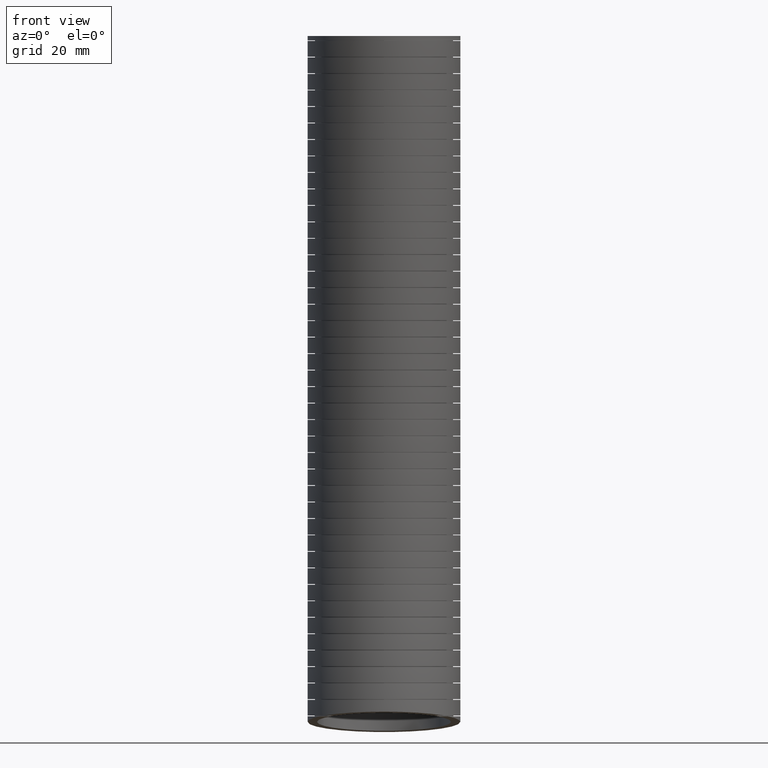
[diagram: clean part render]
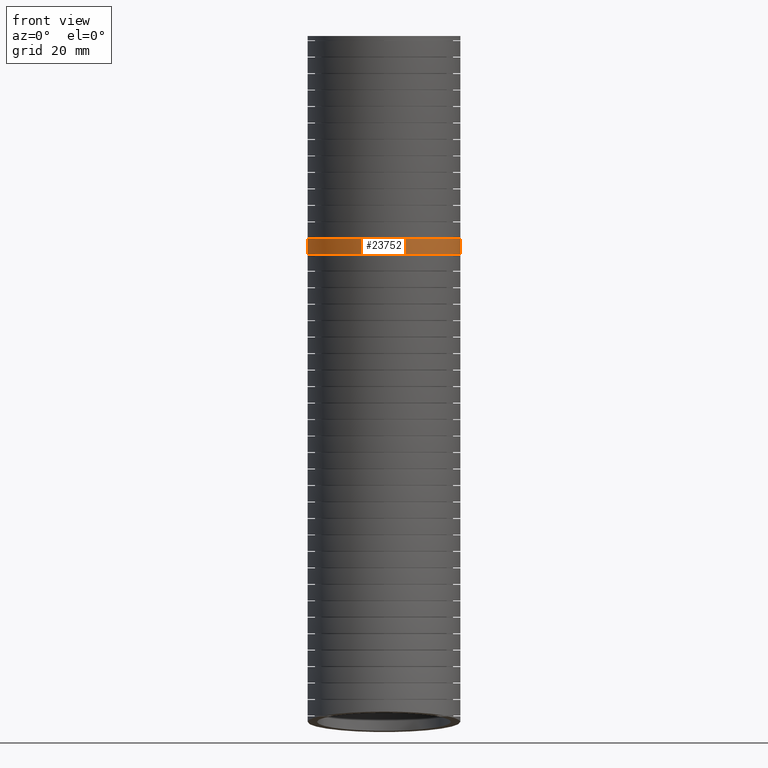
[diagram: same view with one face highlighted and labeled with its STEP entity id]
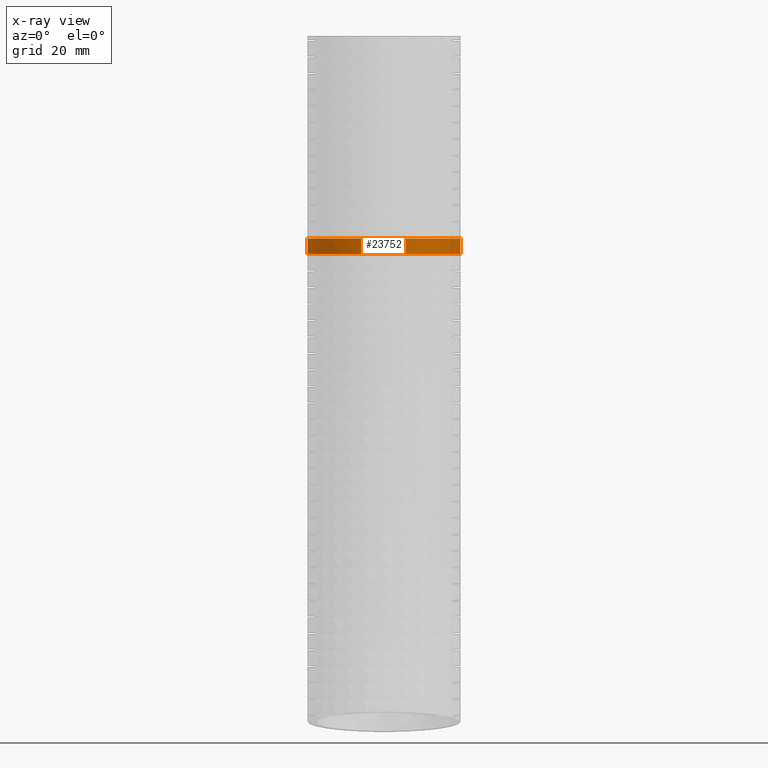
[diagram: x-ray of the same camera — body ghosted, the highlighted face saturated]
A machine part, front view. The second image highlights one B-rep face of the part: STEP entity #23752.
The next image is the same camera in x-ray: the body ghosted, the highlighted face saturated — about 0% of this face is hidden behind the body in this view.
In plain terms, the highlighted face is a freeform B-spline surface patch.
Its self-contained STEP definition (entity closure, byte-faithful):
#2709 = CARTESIAN_POINT ( 'NONE',  ( -0.6206326755569759900, -0.7452581353626901400, -3.047660407145619900 ) ) ;
#2710 = CARTESIAN_POINT ( 'NONE',  ( -0.6487653230785613800, -0.7243818530994008400, -3.047660407145620400 ) ) ;
#2711 = CARTESIAN_POINT ( 'NONE',  ( -0.6626538073747151300, -0.7135333614991757900, -3.047660407145618600 ) ) ;
#2712 = CARTESIAN_POINT ( 'NONE',  ( -0.7032637969153722200, -0.6801632670757035100, -3.047660407145618600 ) ) ;
#2713 = CARTESIAN_POINT ( 'NONE',  ( -0.7290475268307629000, -0.6567434086945263000, -3.047660407145619500 ) ) ;
#2714 = CARTESIAN_POINT ( 'NONE',  ( -0.8026377538740403500, -0.5830625357102650100, -3.047660407145618600 ) ) ;
#2715 = CARTESIAN_POINT ( 'NONE',  ( -0.8467193623690912900, -0.5294130393690731400, -3.047660407145618600 ) ) ;
#2716 = CARTESIAN_POINT ( 'NONE',  ( -0.8954063301640578000, -0.4565154896510772400, -3.047660407145619900 ) ) ;
#2717 = CARTESIAN_POINT ( 'NONE',  ( -0.9048259033471824900, -0.4416264850108230800, -3.047660407145620800 ) ) ;
#2718 = CARTESIAN_POINT ( 'NONE',  ( -0.9228078296155723900, -0.4115872076337455700, -3.047660407145620800 ) ) ;
#2719 = CARTESIAN_POINT ( 'NONE',  ( -0.9313977593119208100, -0.3963976386003211800, -3.047660407145622600 ) ) ;
#2720 = CARTESIAN_POINT ( 'NONE',  ( -0.9559845879704680400, -0.3503276743604427600, -3.047660407145622600 ) ) ;
#2721 = CARTESIAN_POINT ( 'NONE',  ( -0.9708013121755602000, -0.3189472023908702100, -3.047660407145620400 ) ) ;
#2722 = CARTESIAN_POINT ( 'NONE',  ( -0.9973229737718328800, -0.2548676975622925500, -3.047660407145620400 ) ) ;
#2723 = CARTESIAN_POINT ( 'NONE',  ( -1.009027948628280900, -0.2221686805784867900, -3.047660407145620400 ) ) ;
#2724 = CARTESIAN_POINT ( 'NONE',  ( -1.024211885460881900, -0.1721144185217308400, -3.047660407145619500 ) ) ;
#2725 = CARTESIAN_POINT ( 'NONE',  ( -1.028876907050840800, -0.1552617438087775200, -3.047660407145619900 ) ) ;
#2726 = CARTESIAN_POINT ( 'NONE',  ( -1.037398783125397200, -0.1212139488359916100, -3.047660407145619900 ) ) ;
#2727 = CARTESIAN_POINT ( 'NONE',  ( -1.041247483217158800, -0.1040396528277468700, -3.047660407145616400 ) ) ;
#2728 = CARTESIAN_POINT ( 'NONE',  ( -1.058262975113124100, -0.01825992808696691400, -3.047660407145616400 ) ) ;
#2729 = CARTESIAN_POINT ( 'NONE',  ( -1.065000000000000200, 0.05080050881125675000, -3.047660407145619500 ) ) ;
#2730 = CARTESIAN_POINT ( 'NONE',  ( -1.064999999999999900, 0.1202888165547858200, -3.047660407145619900 ) ) ;
#2731 = B_SPLINE_CURVE_WITH_KNOTS ( 'NONE', 3,
 ( #2730, #2729, #2728, #2727, #2726, #2725, #2724, #2723, #2722, #2721, #2720, #2719, #2718, #2717, #2716, #2715, #2714, #2713, #2712, #2711, #2710, #2709, #2783, #2782, #2781, #2780, #2779, #2778, #2777, #2776, #2775, #2774, #2773, #2772, #2771, #2770, #2769, #2768, #2767, #2766, #2765, #2764, #2763, #2762, #2761, #2760, #2759, #2758, #2757, #2756, #2755, #2754, #2753, #2752, #2751, #2750, #2749, #2748, #2747, #2746, #2745, #2744 ),
 .UNSPECIFIED., .F., .F.,
 ( 4, 2, 2, 2, 2, 2, 2, 2, 2, 2, 2, 2, 2, 2, 2, 2, 2, 2, 2, 2, 2, 2, 2, 2, 2, 2, 2, 2, 2, 2, 4 ),
 ( 0.08456937098563481500, 0.08985373519837817900, 0.09117482625156402000, 0.09249591730474987500, 0.09513809941112155700, 0.09778028151749323900, 0.09910137257067908000, 0.1004224636238649400, 0.1057068278366083100, 0.1083490099429800000, 0.1096701009961658500, 0.1109911920493516900, 0.1162755562620950700, 0.1175966473152809100, 0.1189177383684667500, 0.1215599204748384300, 0.1268442846875818000, 0.1281653757407676400, 0.1294864667939534800, 0.1321286489003251600, 0.1347708310066968500, 0.1374130131130685300, 0.1426973773258118900, 0.1453395594321835700, 0.1479817415385552600, 0.1532661057512985900, 0.1559082878576702700, 0.1585504699640419300, 0.1611926520704136100, 0.1638348341767852900, 0.1691191983895286300 ),
 .UNSPECIFIED. ) ;
#2732 = CARTESIAN_POINT ( 'NONE',  ( 1.064999999999999700, 0.1202888165433190900, -3.047660406953656600 ) ) ;
#2733 = CARTESIAN_POINT ( 'NONE',  ( 1.064999999999999700, 0.1202888165433190900, -3.047660406953656600 ) ) ;
#2734 = CARTESIAN_POINT ( 'NONE',  ( 1.064999999999999700, 0.1180997876604583700, -2.974366798728062600 ) ) ;
#2735 = CARTESIAN_POINT ( 'NONE',  ( 1.064999999999999700, 0.1158344314965462100, -2.901069934196673900 ) ) ;
#2736 = CARTESIAN_POINT ( 'NONE',  ( 1.064999999999999700, 0.1134982571267171600, -2.827770048389986400 ) ) ;
#2737 = B_SPLINE_CURVE_WITH_KNOTS ( 'NONE', 3,
 ( #2736, #2735, #2734, #2733 ),
 .UNSPECIFIED., .F., .F.,
 ( 4, 4 ),
 ( 0.2949373517595493800, 0.3178810604191436600 ),
 .UNSPECIFIED. ) ;
#2744 = CARTESIAN_POINT ( 'NONE',  ( 1.064999999999999700, 0.1202888165433190900, -3.047660406953656600 ) ) ;
#2745 = CARTESIAN_POINT ( 'NONE',  ( 1.064999999999999700, 0.04994167835159130100, -3.047660406953657500 ) ) ;
#2746 = CARTESIAN_POINT ( 'NONE',  ( 1.058096129742804400, -0.01967599656846217800, -3.047660407145619900 ) ) ;
#2747 = CARTESIAN_POINT ( 'NONE',  ( 1.037424822012526400, -0.1230125850248468300, -3.047660407145619900 ) ) ;
#2748 = CARTESIAN_POINT ( 'NONE',  ( 1.028841484945652900, -0.1570262922147502300, -3.047660407145619900 ) ) ;
#2749 = CARTESIAN_POINT ( 'NONE',  ( 1.008542001365412500, -0.2235891008270225700, -3.047660407145620800 ) ) ;
#2750 = CARTESIAN_POINT ( 'NONE',  ( 0.9968062416436752600, -0.2562384251997719700, -3.047660407145620800 ) ) ;
#2751 = CARTESIAN_POINT ( 'NONE',  ( 0.9701945775768767700, -0.3202856237789321000, -3.047660407145620800 ) ) ;
#2752 = CARTESIAN_POINT ( 'NONE',  ( 0.9553187380487762100, -0.3516835238170192800, -3.047660407145620400 ) ) ;
#2753 = CARTESIAN_POINT ( 'NONE',  ( 0.9223678458913559000, -0.4132043330096729600, -3.047660407145620800 ) ) ;
#2754 = CARTESIAN_POINT ( 'NONE',  ( 0.9041828425234091900, -0.4434726590993544600, -3.047660407145620400 ) ) ;
#2755 = CARTESIAN_POINT ( 'NONE',  ( 0.8458064974104734200, -0.5305765607723147400, -3.047660407145620400 ) ) ;
#2756 = CARTESIAN_POINT ( 'NONE',  ( 0.8017072677644245800, -0.5841317874364113600, -3.047660407145619500 ) ) ;
#2757 = CARTESIAN_POINT ( 'NONE',  ( 0.7279151329315957100, -0.6578061269817415700, -3.047660407145618600 ) ) ;
#2758 = CARTESIAN_POINT ( 'NONE',  ( 0.7020348757033405600, -0.6812466521006967900, -3.047660407145619900 ) ) ;
#2759 = CARTESIAN_POINT ( 'NONE',  ( 0.6476166221577227500, -0.7258123962229465800, -3.047660407145620400 ) ) ;
#2760 = CARTESIAN_POINT ( 'NONE',  ( 0.6195224298708362800, -0.7465730472168454800, -3.047660407145619900 ) ) ;
#2761 = CARTESIAN_POINT ( 'NONE',  ( 0.5327379366294661100, -0.8043994528375407700, -3.047660407145620800 ) ) ;
#2762 = CARTESIAN_POINT ( 'NONE',  ( 0.4715420362592948100, -0.8370734130558623600, -3.047660407145619500 ) ) ;
#2763 = CARTESIAN_POINT ( 'NONE',  ( 0.3746592891516003500, -0.8771289149652523600, -3.047660407145619500 ) ) ;
#2764 = CARTESIAN_POINT ( 'NONE',  ( 0.3413980628707999300, -0.8889931882432871000, -3.047660407145622100 ) ) ;
#2765 = CARTESIAN_POINT ( 'NONE',  ( 0.2745784823530790200, -0.9091768170703569100, -3.047660407145620400 ) ) ;
#2766 = CARTESIAN_POINT ( 'NONE',  ( 0.2408614123100284700, -0.9175738634386696500, -3.047660407145619900 ) ) ;
#2767 = CARTESIAN_POINT ( 'NONE',  ( 0.1728243767360574400, -0.9310427520453000700, -3.047660407145619900 ) ) ;
#2768 = CARTESIAN_POINT ( 'NONE',  ( 0.1385043973525260400, -0.9361145178810540400, -3.047660407145619900 ) ) ;
#2769 = CARTESIAN_POINT ( 'NONE',  ( 0.08656786492208837200, -0.9412040413797172500, -3.047660407145619500 ) ) ;
#2770 = CARTESIAN_POINT ( 'NONE',  ( 0.06917945907774603100, -0.9424801199879184700, -3.047660407145619500 ) ) ;
#2771 = CARTESIAN_POINT ( 'NONE',  ( 0.03424777628001497000, -0.9441781025392599300, -3.047660407145619900 ) ) ;
#2772 = CARTESIAN_POINT ( 'NONE',  ( 0.01665954402549083300, -0.9445995911477127500, -3.047660407145619500 ) ) ;
#2773 = CARTESIAN_POINT ( 'NONE',  ( -0.07110773320784041800, -0.9445259325487178600, -3.047660407145619500 ) ) ;
#2774 = CARTESIAN_POINT ( 'NONE',  ( -0.1402263585964850000, -0.9375927720574255300, -3.047660407145620400 ) ) ;
#2775 = CARTESIAN_POINT ( 'NONE',  ( -0.2423178858047752800, -0.9172355853527837100, -3.047660407145621700 ) ) ;
#2776 = CARTESIAN_POINT ( 'NONE',  ( -0.2760820584886899400, -0.9087781393631062500, -3.047660407145620400 ) ) ;
#2777 = CARTESIAN_POINT ( 'NONE',  ( -0.3263183050726070600, -0.8935184399004306700, -3.047660407145620400 ) ) ;
#2778 = CARTESIAN_POINT ( 'NONE',  ( -0.3430412890779864800, -0.8879846726960741700, -3.047660407145623000 ) ) ;
#2779 = CARTESIAN_POINT ( 'NONE',  ( -0.3760559559193678000, -0.8761450325513778800, -3.047660407145622600 ) ) ;
#2780 = CARTESIAN_POINT ( 'NONE',  ( -0.3923551893338629300, -0.8698400183292948100, -3.047660407145620400 ) ) ;
#2781 = CARTESIAN_POINT ( 'NONE',  ( -0.4728301907900023200, -0.8364247645681953700, -3.047660407145619900 ) ) ;
#2782 = CARTESIAN_POINT ( 'NONE',  ( -0.5339715200870403000, -0.8036977637733158100, -3.047660407145620400 ) ) ;
#2783 = CARTESIAN_POINT ( 'NONE',  ( -0.6063589617133723400, -0.7553123964163266400, -3.047660407145619500 ) ) ;
#2939 = CARTESIAN_POINT ( 'NONE',  ( -1.064999999999999700, 0.1158344315025471000, -2.901069934388832200 ) ) ;
#2940 = CARTESIAN_POINT ( 'NONE',  ( -1.064999999999999700, 0.1134982571389542300, -2.827770048581959900 ) ) ;
#2941 = B_SPLINE_CURVE_WITH_KNOTS ( 'NONE', 3,
 ( #2940, #2939, #3009, #3008 ),
 .UNSPECIFIED., .F., .F.,
 ( 4, 4 ),
 ( 0.2949373517795997900, 0.3178810604391920600 ),
 .UNSPECIFIED. ) ;
#3008 = CARTESIAN_POINT ( 'NONE',  ( -1.064999999999999900, 0.1202888165547858200, -3.047660407145619900 ) ) ;
#3009 = CARTESIAN_POINT ( 'NONE',  ( -1.064999999999999700, 0.1180997876663305000, -2.974366798920209400 ) ) ;
#3010 = CARTESIAN_POINT ( 'NONE',  ( -1.064999999999999900, 0.1202888165547858200, -3.047660407145619900 ) ) ;
#3058 = B_SPLINE_CURVE_WITH_KNOTS ( 'NONE', 3,
 ( #3073, #3072, #3071, #3070, #3069, #3068, #3067, #3066, #3065, #3064, #3063, #3062, #3061, #3060, #3142, #3141, #3140, #3139, #3138, #3137, #3136, #3135, #3134, #3133, #3132, #3131, #3130, #3129, #3128, #3127, #3126, #3125, #3124, #3123, #3122, #3120, #3119, #3118, #3117, #3116, #3115, #3114, #3113, #3112, #3111, #3110, #3109, #3108, #3107, #3106, #3105, #3104, #3102, #3101, #3100, #3099, #3098, #3097, #3095, #3094, #3093 ),
 .UNSPECIFIED., .F., .F.,
 ( 4, 2, 2, 2, 2, 2, 2, 2, 2, 2, 2, 1, 2, 2, 2, 2, 2, 2, 2, 2, 2, 2, 2, 2, 2, 2, 2, 2, 2, 2, 4 ),
 ( 0.0000000000000000000, 0.005285691404351380000, 0.007928537106527071300, 0.01057138280870276000, 0.01585707421305414300, 0.01717849706414198100, 0.01849991991522982300, 0.02114276561740550600, 0.02642845702175687000, 0.02774987987284471100, 0.02907130272393255700, 0.03171414842610824300, 0.03435699412828392700, 0.03567841697937177600, 0.03699983983045961700, 0.04228553123481098400, 0.04492837693698666800, 0.04624979978807451000, 0.04757122263916235100, 0.05285691404351372500, 0.05417833689460157400, 0.05549975974568941600, 0.05814260544786510600, 0.06342829685221648700, 0.06607114255439217000, 0.06871398825656786800, 0.07135683395874356500, 0.07399967966091924900, 0.07928537106527062900, 0.08192821676744632700, 0.08457106246962201000 ),
 .UNSPECIFIED. ) ;
#3060 = CARTESIAN_POINT ( 'NONE',  ( 0.8009353758830114500, -0.5892791881674974700, -2.827770048581961200 ) ) ;
#3061 = CARTESIAN_POINT ( 'NONE',  ( 0.8343496160251454600, -0.5485720664681583700, -2.827770048581959500 ) ) ;
#3062 = CARTESIAN_POINT ( 'NONE',  ( 0.8451769441507190900, -0.5346935210072792900, -2.827770048581959900 ) ) ;
#3063 = CARTESIAN_POINT ( 'NONE',  ( 0.8660114733785732000, -0.5065868108379806300, -2.827770048581960800 ) ) ;
#3064 = CARTESIAN_POINT ( 'NONE',  ( 0.8760486671996653400, -0.4923228250322091400, -2.827770048581959500 ) ) ;
#3065 = CARTESIAN_POINT ( 'NONE',  ( 0.9243642000853904400, -0.4199663224565221600, -2.827770048581959000 ) ) ;
#3066 = CARTESIAN_POINT ( 'NONE',  ( 0.9570846575665030700, -0.3587936936971639600, -2.827770048581959000 ) ) ;
#3067 = CARTESIAN_POINT ( 'NONE',  ( 0.9971871843770390200, -0.2620591612027599600, -2.827770048581959000 ) ) ;
#3068 = CARTESIAN_POINT ( 'NONE',  ( 1.009089536719443000, -0.2288037991752221200, -2.827770048581957700 ) ) ;
#3069 = CARTESIAN_POINT ( 'NONE',  ( 1.029367581886840900, -0.1618924694471530200, -2.827770048581958600 ) ) ;
#3070 = CARTESIAN_POINT ( 'NONE',  ( 1.037800355878224900, -0.1281462227907648200, -2.827770048581958600 ) ) ;
#3071 = CARTESIAN_POINT ( 'NONE',  ( 1.058094181175787400, -0.02605519457903776900, -2.827770048581959000 ) ) ;
#3072 = CARTESIAN_POINT ( 'NONE',  ( 1.064999999999999900, 0.04313348530543526000, -2.827770048389986400 ) ) ;
#3073 = CARTESIAN_POINT ( 'NONE',  ( 1.064999999999999700, 0.1134982571267171600, -2.827770048389986400 ) ) ;
#3074 = CARTESIAN_POINT ( 'NONE',  ( -1.064999999999999700, 0.1134982571389542300, -2.827770048581959900 ) ) ;
#3093 = CARTESIAN_POINT ( 'NONE',  ( -1.064999999999999700, 0.1134982571389542300, -2.827770048581959900 ) ) ;
#3094 = CARTESIAN_POINT ( 'NONE',  ( -1.064999999999999900, 0.07874538016088569700, -2.827770048581959000 ) ) ;
#3095 = CARTESIAN_POINT ( 'NONE',  ( -1.063303093461001300, 0.04388474561094819800, -2.827770048581959500 ) ) ;
#3097 = CARTESIAN_POINT ( 'NONE',  ( -1.056400186178466600, -0.02605935925639325500, -2.827770048581959500 ) ) ;
#3098 = CARTESIAN_POINT ( 'NONE',  ( -1.051229496052025200, -0.06070846085702653900, -2.827770048581958600 ) ) ;
#3099 = CARTESIAN_POINT ( 'NONE',  ( -1.030813754112881500, -0.1630506379025429300, -2.827770048581959000 ) ) ;
#3100 = CARTESIAN_POINT ( 'NONE',  ( -1.010682818748729300, -0.2294463305459585600, -2.827770048581959500 ) ) ;
#3101 = CARTESIAN_POINT ( 'NONE',  ( -0.9705851414660764400, -0.3262573357832828100, -2.827770048581959500 ) ) ;
#3102 = CARTESIAN_POINT ( 'NONE',  ( -0.9554726371292023800, -0.3581892508802669800, -2.827770048581961200 ) ) ;
#3104 = CARTESIAN_POINT ( 'NONE',  ( -0.9225038569213209700, -0.4197893054693011000, -2.827770048581959900 ) ) ;
#3105 = CARTESIAN_POINT ( 'NONE',  ( -0.9046051255006853900, -0.4495979759565372200, -2.827770048581961700 ) ) ;
#3106 = CARTESIAN_POINT ( 'NONE',  ( -0.8660375507050129800, -0.5072736573680120000, -2.827770048581961200 ) ) ;
#3107 = CARTESIAN_POINT ( 'NONE',  ( -0.8453686202967106700, -0.5351406072878629500, -2.827770048581958600 ) ) ;
#3108 = CARTESIAN_POINT ( 'NONE',  ( -0.8012385176389470500, -0.5889173360231632100, -2.827770048581957200 ) ) ;
#3109 = CARTESIAN_POINT ( 'NONE',  ( -0.7777337154208833200, -0.6148709735549060500, -2.827770048581958600 ) ) ;
#3110 = CARTESIAN_POINT ( 'NONE',  ( -0.7031491852764351100, -0.6894114696093421900, -2.827770048581959000 ) ) ;
#3111 = CARTESIAN_POINT ( 'NONE',  ( -0.6493558942021067100, -0.7334284460082526300, -2.827770048581959500 ) ) ;
#3112 = CARTESIAN_POINT ( 'NONE',  ( -0.5627908960351996100, -0.7912601344476044600, -2.827770048581960800 ) ) ;
#3113 = CARTESIAN_POINT ( 'NONE',  ( -0.5329494940293216800, -0.8091616571080844100, -2.827770048581960800 ) ) ;
#3114 = CARTESIAN_POINT ( 'NONE',  ( -0.4866715231158553800, -0.8338998045608007100, -2.827770048581959900 ) ) ;
#3115 = CARTESIAN_POINT ( 'NONE',  ( -0.4709510061651964200, -0.8418119718147953900, -2.827770048581959500 ) ) ;
#3116 = CARTESIAN_POINT ( 'NONE',  ( -0.4392039453170469300, -0.8568153120494054200, -2.827770048581959000 ) ) ;
#3117 = CARTESIAN_POINT ( 'NONE',  ( -0.4232070582173732600, -0.8638954243144023600, -2.827770048581959900 ) ) ;
#3118 = CARTESIAN_POINT ( 'NONE',  ( -0.3426178514790715900, -0.8972292465366628100, -2.827770048581959500 ) ) ;
#3119 = CARTESIAN_POINT ( 'NONE',  ( -0.2762284329415166100, -0.9173415689400186100, -2.827770048581958600 ) ) ;
#3120 = CARTESIAN_POINT ( 'NONE',  ( -0.1908577696425412500, -0.9343352899976776800, -2.827770048581957200 ) ) ;
#3122 = CARTESIAN_POINT ( 'NONE',  ( -0.1736633705207134000, -0.9373230368214058300, -2.827770048581958600 ) ) ;
#3123 = CARTESIAN_POINT ( 'NONE',  ( -0.1390299881063452900, -0.9424626910040524400, -2.827770048581959000 ) ) ;
#3124 = CARTESIAN_POINT ( 'NONE',  ( -0.1215421022320185400, -0.9446184314707687400, -2.827770048581958600 ) ) ;
#3125 = CARTESIAN_POINT ( 'NONE',  ( -0.06917409746305003300, -0.9497607878295680800, -2.827770048581959000 ) ) ;
#3126 = CARTESIAN_POINT ( 'NONE',  ( -0.03435418359989667000, -0.9514429411552595100, -2.827770048581959900 ) ) ;
#3127 = CARTESIAN_POINT ( 'NONE',  ( 0.06983746347636170200, -0.9514061230096133600, -2.827770048581960800 ) ) ;
#3128 = CARTESIAN_POINT ( 'NONE',  ( 0.1389436567873758000, -0.9446523108066041700, -2.827770048581959000 ) ) ;
#3129 = CARTESIAN_POINT ( 'NONE',  ( 0.2248706622173114700, -0.9275689365931023600, -2.827770048581959500 ) ) ;
#3130 = CARTESIAN_POINT ( 'NONE',  ( 0.2420698302946995800, -0.9237052392263873600, -2.827770048581959500 ) ) ;
#3131 = CARTESIAN_POINT ( 'NONE',  ( 0.2760647113540712300, -0.9151803124954764900, -2.827770048581959500 ) ) ;
#3132 = CARTESIAN_POINT ( 'NONE',  ( 0.2928960891569401000, -0.9105139066870534500, -2.827770048581959900 ) ) ;
#3133 = CARTESIAN_POINT ( 'NONE',  ( 0.3429008030154972500, -0.8953241913549144800, -2.827770048581959500 ) ) ;
#3134 = CARTESIAN_POINT ( 'NONE',  ( 0.4082709394807423300, -0.8719021795742349900, -2.827770048581959500 ) ) ;
#3135 = CARTESIAN_POINT ( 'NONE',  ( 0.4710705943155249500, -0.8422275507896130900, -2.827770048581959500 ) ) ;
#3136 = CARTESIAN_POINT ( 'NONE',  ( 0.5171916404864944600, -0.8175909340156234400, -2.827770048581959500 ) ) ;
#3137 = CARTESIAN_POINT ( 'NONE',  ( 0.5324019172552019200, -0.8089812501183076800, -2.827770048581959500 ) ) ;
#3138 = CARTESIAN_POINT ( 'NONE',  ( 0.5624895236504152700, -0.7909519987057269700, -2.827770048581960800 ) ) ;
#3139 = CARTESIAN_POINT ( 'NONE',  ( 0.5773764166626317300, -0.7815226757962222500, -2.827770048581959900 ) ) ;
#3140 = CARTESIAN_POINT ( 'NONE',  ( 0.6501519657900978200, -0.7328693772742167500, -2.827770048581961200 ) ) ;
#3141 = CARTESIAN_POINT ( 'NONE',  ( 0.7037797655385451500, -0.6887877843610334900, -2.827770048581956800 ) ) ;
#3142 = CARTESIAN_POINT ( 'NONE',  ( 0.7774934862135585200, -0.6151077945868568300, -2.827770048581957700 ) ) ;
#13017 = CARTESIAN_POINT ( 'NONE',  ( 1.064999999999999700, -2.140788144512650400, -9.284564527458751800 ) ) ;
#13018 = CARTESIAN_POINT ( 'NONE',  ( 1.064999999999999700, -2.124537751342253000, -9.104349485882636400 ) ) ;
#13019 = CARTESIAN_POINT ( 'NONE',  ( 1.064999999999999700, -2.004921696294905200, -7.777820822391721100 ) ) ;
#13193 = FACE_OUTER_BOUND ( 'NONE', #23750, .T. ) ;
#13194 = CARTESIAN_POINT ( 'NONE',  ( 1.064999999999999700, 0.1134982571267171600, -2.827770048389986400 ) ) ;
#13272 = CARTESIAN_POINT ( 'NONE',  ( 1.064999999999999900, -1.920720332394860500, -4.747094541069063900 ) ) ;
#13273 = CARTESIAN_POINT ( 'NONE',  ( 1.065000000000000200, -2.051880588320306000, -1.771984048808268300 ) ) ;
#13274 = CARTESIAN_POINT ( 'NONE',  ( 1.064999999999999900, -2.129999999999999900, 0.0000000000000000000 ) ) ;
#13275 = CARTESIAN_POINT ( 'NONE',  ( 1.064999999999999700, -0.02999999999999993000, -9.569999999999996700 ) ) ;
#13276 = CARTESIAN_POINT ( 'NONE',  ( 1.064999999999999700, -0.01282253193203170200, -9.380021792021830500 ) ) ;
#13277 = CARTESIAN_POINT ( 'NONE',  ( 1.064999999999999700, 0.1136175452062334300, -7.981628316551387500 ) ) ;
#13278 = CARTESIAN_POINT ( 'NONE',  ( 1.064999999999999500, 0.2122813731536103700, -4.795410929656176400 ) ) ;
#13279 = CARTESIAN_POINT ( 'NONE',  ( 1.064999999999999900, 0.07923988111738790300, -1.790019474294677300 ) ) ;
#13280 = CARTESIAN_POINT ( 'NONE',  ( 1.064999999999999900, 0.0000000000000000000, 0.0000000000000000000 ) ) ;
#13288 =( BOUNDED_SURFACE ( )  B_SPLINE_SURFACE ( 3, 3, ( 
 ( #13280, #13279, #13278, #13277, #13276, #13275 ),
 ( #13274, #13273, #13272, #13019, #13018, #13017 ),
 ( #13322, #13321, #13320, #13319, #13318, #13317 ),
 ( #13316, #13315, #13314, #13313, #13312, #13311 ),
 ( #13310, #13309, #13308, #13307, #13306, #13305 ),
 ( #13304, #13303, #13302, #13301, #13300, #13299 ),
 ( #13298, #13297, #13296, #13295, #13294, #13293 ) ),
 .UNSPECIFIED., .F., .F., .F. ) 
 B_SPLINE_SURFACE_WITH_KNOTS ( ( 4, 3, 4 ),
 ( 4, 1, 1, 4 ),
 ( 0.0000000000000000000, 0.5000000000000000000, 1.000000000000000000 ),
 ( 0.0000000000000000000, 0.5600000000000001600, 0.9402239691641354200, 1.000000000000000000 ),
 .UNSPECIFIED. ) 
 GEOMETRIC_REPRESENTATION_ITEM ( )  RATIONAL_B_SPLINE_SURFACE ( (
 ( 1.000000000000000000, 1.000000000000000000, 1.000000000000000200, 1.000000000000000200, 1.000000000000000200, 1.000000000000000200),
 ( 0.3333333333333333100, 0.3333333333333333100, 0.3333333333333332600, 0.3333333333333334300, 0.3333333333333333700, 0.3333333333333333700),
 ( 0.3333333333333333100, 0.3333333333333333100, 0.3333333333333332600, 0.3333333333333334300, 0.3333333333333333700, 0.3333333333333333700),
 ( 1.000000000000000000, 1.000000000000000000, 1.000000000000000200, 1.000000000000000200, 1.000000000000000200, 1.000000000000000200),
 ( 0.3333333333333333100, 0.3333333333333333100, 0.3333333333333332600, 0.3333333333333334300, 0.3333333333333333700, 0.3333333333333333700),
 ( 0.3333333333333333100, 0.3333333333333333100, 0.3333333333333332600, 0.3333333333333334300, 0.3333333333333333700, 0.3333333333333333700),
 ( 1.000000000000000000, 1.000000000000000000, 1.000000000000000200, 1.000000000000000200, 1.000000000000000200, 1.000000000000000200) ) ) 
 REPRESENTATION_ITEM ( '' )  SURFACE ( )  );
#13293 = CARTESIAN_POINT ( 'NONE',  ( 1.064999999999999700, -0.02999999999999993000, -9.569999999999996700 ) ) ;
#13294 = CARTESIAN_POINT ( 'NONE',  ( 1.064999999999999700, -0.01282253193203170200, -9.380021792021830500 ) ) ;
#13295 = CARTESIAN_POINT ( 'NONE',  ( 1.064999999999999700, 0.1136175452062334300, -7.981628316551387500 ) ) ;
#13296 = CARTESIAN_POINT ( 'NONE',  ( 1.064999999999999500, 0.2122813731536103700, -4.795410929656176400 ) ) ;
#13297 = CARTESIAN_POINT ( 'NONE',  ( 1.064999999999999900, 0.07923988111738790300, -1.790019474294677300 ) ) ;
#13298 = CARTESIAN_POINT ( 'NONE',  ( 1.064999999999999900, 0.0000000000000000000, 0.0000000000000000000 ) ) ;
#13299 = CARTESIAN_POINT ( 'NONE',  ( 1.064999999999999700, 2.080788144512650400, -9.855435472541238100 ) ) ;
#13300 = CARTESIAN_POINT ( 'NONE',  ( 1.064999999999999700, 2.098892687478189700, -9.655694098161024600 ) ) ;
#13301 = CARTESIAN_POINT ( 'NONE',  ( 1.064999999999999700, 2.232156786707371500, -8.185435810711052100 ) ) ;
#13302 = CARTESIAN_POINT ( 'NONE',  ( 1.064999999999999900, 2.345283078702082900, -4.843727318243294300 ) ) ;
#13303 = CARTESIAN_POINT ( 'NONE',  ( 1.065000000000000200, 2.210360350555081500, -1.808054899781085700 ) ) ;
#13304 = CARTESIAN_POINT ( 'NONE',  ( 1.064999999999999900, 2.129999999999999900, 0.0000000000000000000 ) ) ;
#13305 = CARTESIAN_POINT ( 'NONE',  ( -1.064999999999999700, 2.080788144512650400, -9.855435472541238100 ) ) ;
#13306 = CARTESIAN_POINT ( 'NONE',  ( -1.064999999999999700, 2.098892687478189700, -9.655694098161024600 ) ) ;
#13307 = CARTESIAN_POINT ( 'NONE',  ( -1.064999999999999500, 2.232156786707371500, -8.185435810711052100 ) ) ;
#13308 = CARTESIAN_POINT ( 'NONE',  ( -1.064999999999999500, 2.345283078702082900, -4.843727318243294300 ) ) ;
#13309 = CARTESIAN_POINT ( 'NONE',  ( -1.064999999999999900, 2.210360350555081500, -1.808054899781085700 ) ) ;
#13310 = CARTESIAN_POINT ( 'NONE',  ( -1.064999999999999900, 2.129999999999999900, 0.0000000000000000000 ) ) ;
#13311 = CARTESIAN_POINT ( 'NONE',  ( -1.064999999999999700, -0.02999999999999980100, -9.569999999999996700 ) ) ;
#13312 = CARTESIAN_POINT ( 'NONE',  ( -1.064999999999999700, -0.01282253193203157000, -9.380021792021830500 ) ) ;
#13313 = CARTESIAN_POINT ( 'NONE',  ( -1.064999999999999700, 0.1136175452062335600, -7.981628316551387500 ) ) ;
#13314 = CARTESIAN_POINT ( 'NONE',  ( -1.064999999999999500, 0.2122813731536105100, -4.795410929656176400 ) ) ;
#13315 = CARTESIAN_POINT ( 'NONE',  ( -1.064999999999999900, 0.07923988111738802800, -1.790019474294677300 ) ) ;
#13316 = CARTESIAN_POINT ( 'NONE',  ( -1.064999999999999900, 1.304248841091931100E-016, 0.0000000000000000000 ) ) ;
#13317 = CARTESIAN_POINT ( 'NONE',  ( -1.064999999999999900, -2.140788144512650400, -9.284564527458751800 ) ) ;
#13318 = CARTESIAN_POINT ( 'NONE',  ( -1.064999999999999900, -2.124537751342253000, -9.104349485882636400 ) ) ;
#13319 = CARTESIAN_POINT ( 'NONE',  ( -1.064999999999999700, -2.004921696294905200, -7.777820822391721100 ) ) ;
#13320 = CARTESIAN_POINT ( 'NONE',  ( -1.065000000000000400, -1.920720332394860500, -4.747094541069063900 ) ) ;
#13321 = CARTESIAN_POINT ( 'NONE',  ( -1.065000000000000200, -2.051880588320306000, -1.771984048808268300 ) ) ;
#13322 = CARTESIAN_POINT ( 'NONE',  ( -1.065000000000000200, -2.129999999999999900, 0.0000000000000000000 ) ) ;
#22004 = EDGE_CURVE ( 'NONE', #23751, #22008, #2737, .T. ) ;
#22007 = EDGE_CURVE ( 'NONE', #22039, #22008, #2731, .T. ) ;
#22008 = VERTEX_POINT ( 'NONE', #2732 ) ;
#22009 = ORIENTED_EDGE ( 'NONE', *, *, #22004, .F. ) ;
#22032 = EDGE_CURVE ( 'NONE', #22043, #22039, #2941, .T. ) ;
#22038 = ORIENTED_EDGE ( 'NONE', *, *, #22032, .T. ) ;
#22039 = VERTEX_POINT ( 'NONE', #3010 ) ;
#22042 = EDGE_CURVE ( 'NONE', #23751, #22043, #3058, .T. ) ;
#22043 = VERTEX_POINT ( 'NONE', #3074 ) ;
#22044 = ORIENTED_EDGE ( 'NONE', *, *, #22042, .T. ) ;
#22047 = ORIENTED_EDGE ( 'NONE', *, *, #22007, .T. ) ;
#23750 = EDGE_LOOP ( 'NONE', ( #22044, #22038, #22047, #22009 ) ) ;
#23751 = VERTEX_POINT ( 'NONE', #13194 ) ;
#23752 = ADVANCED_FACE ( 'NONE', ( #13193 ), #13288, .T. ) ;